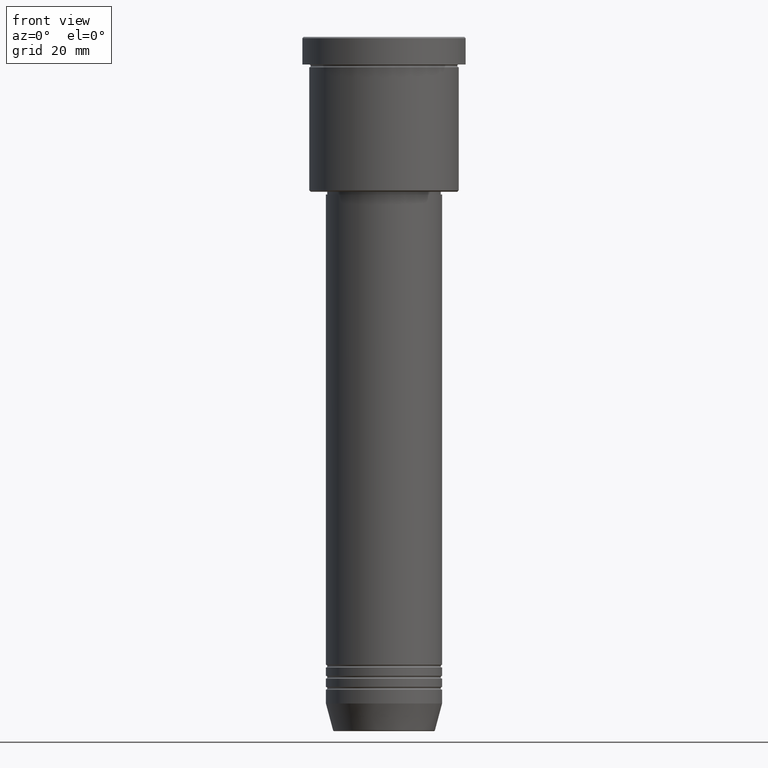
[diagram: clean part render]
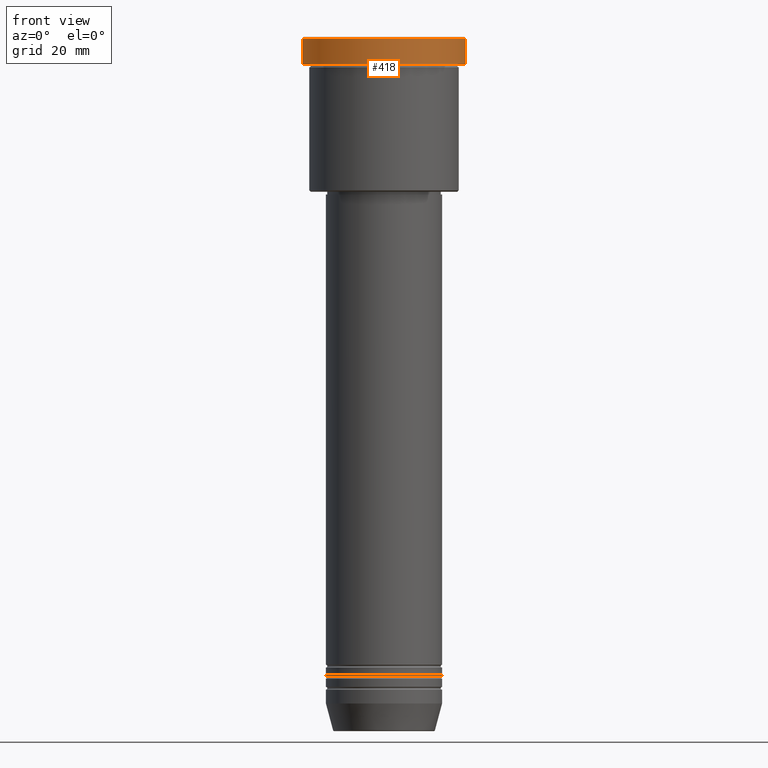
[diagram: same view with one face highlighted and labeled with its STEP entity id]
A machine part, front view. The second image highlights one B-rep face of the part: STEP entity #418.
In plain terms, the highlighted cylindrical surface (partial cylindrical patch) has radius 29.5 mm, axis along (-0, -0, 1).
Its self-contained STEP definition (entity closure, byte-faithful):
#21 = ORIENTED_EDGE ( 'NONE', *, *, #1169, .F. ) ;
#91 = EDGE_CURVE ( 'NONE', #134, #143, #892, .T. ) ;
#92 = CARTESIAN_POINT ( 'NONE',  ( 0.000000000000000000, 0.000000000000000000, 0.000000000000000000 ) ) ;
#96 = DIRECTION ( 'NONE',  ( -0.000000000000000000, -0.000000000000000000, 1.000000000000000000 ) ) ;
#102 = CARTESIAN_POINT ( 'NONE',  ( 0.000000000000000000, 0.000000000000000000, -9.999999999999992895 ) ) ;
#134 = VERTEX_POINT ( 'NONE', #374 ) ;
#143 = VERTEX_POINT ( 'NONE', #748 ) ;
#145 = AXIS2_PLACEMENT_3D ( 'NONE', #92, #96, #999 ) ;
#152 = EDGE_CURVE ( 'NONE', #1033, #752, #1182, .T. ) ;
#180 = DIRECTION ( 'NONE',  ( -0.000000000000000000, -0.000000000000000000, 1.000000000000000000 ) ) ;
#199 = LINE ( 'NONE', #917, #1051 ) ;
#334 = ORIENTED_EDGE ( 'NONE', *, *, #524, .T. ) ;
#374 = CARTESIAN_POINT ( 'NONE',  ( 29.50000000000000000, 0.000000000000000000, -0.5000000000000559552 ) ) ;
#409 = CARTESIAN_POINT ( 'NONE',  ( 29.50000000000000000, 0.000000000000000000, -9.999999999999992895 ) ) ;
#418 = ADVANCED_FACE ( 'NONE', ( #632 ), #1106, .T. ) ;
#493 = CARTESIAN_POINT ( 'NONE',  ( 29.50000000000000000, 0.000000000000000000, 0.000000000000000000 ) ) ;
#524 = EDGE_CURVE ( 'NONE', #752, #134, #1041, .T. ) ;
#536 = AXIS2_PLACEMENT_3D ( 'NONE', #567, #1113, #929 ) ;
#567 = CARTESIAN_POINT ( 'NONE',  ( 0.000000000000000000, 0.000000000000000000, -0.5000000000000559552 ) ) ;
#601 = CARTESIAN_POINT ( 'NONE',  ( -29.50000000000000000, 3.612708057484691604E-15, -9.999999999999992895 ) ) ;
#609 = AXIS2_PLACEMENT_3D ( 'NONE', #102, #180, #838 ) ;
#632 = FACE_OUTER_BOUND ( 'NONE', #918, .T. ) ;
#748 = CARTESIAN_POINT ( 'NONE',  ( -29.50000000000000000, 3.612708057484691604E-15, -0.5000000000000559552 ) ) ;
#752 = VERTEX_POINT ( 'NONE', #409 ) ;
#822 = DIRECTION ( 'NONE',  ( -0.000000000000000000, -0.000000000000000000, 1.000000000000000000 ) ) ;
#838 = DIRECTION ( 'NONE',  ( 1.000000000000000000, 0.000000000000000000, 0.000000000000000000 ) ) ;
#865 = DIRECTION ( 'NONE',  ( -0.000000000000000000, -0.000000000000000000, 1.000000000000000000 ) ) ;
#892 = CIRCLE ( 'NONE', #536, 29.50000000000000000 ) ;
#917 = CARTESIAN_POINT ( 'NONE',  ( -29.50000000000000000, 3.612708057484691604E-15, 0.000000000000000000 ) ) ;
#918 = EDGE_LOOP ( 'NONE', ( #21, #1019, #334, #1150 ) ) ;
#929 = DIRECTION ( 'NONE',  ( 1.000000000000000000, 0.000000000000000000, 0.000000000000000000 ) ) ;
#999 = DIRECTION ( 'NONE',  ( 1.000000000000000000, 0.000000000000000000, 0.000000000000000000 ) ) ;
#1019 = ORIENTED_EDGE ( 'NONE', *, *, #152, .T. ) ;
#1033 = VERTEX_POINT ( 'NONE', #601 ) ;
#1041 = LINE ( 'NONE', #493, #1161 ) ;
#1051 = VECTOR ( 'NONE', #822, 1000.000000000000000 ) ;
#1106 = CYLINDRICAL_SURFACE ( 'NONE', #145, 29.50000000000000000 ) ;
#1113 = DIRECTION ( 'NONE',  ( 0.000000000000000000, 0.000000000000000000, -1.000000000000000000 ) ) ;
#1150 = ORIENTED_EDGE ( 'NONE', *, *, #91, .T. ) ;
#1161 = VECTOR ( 'NONE', #865, 1000.000000000000000 ) ;
#1169 = EDGE_CURVE ( 'NONE', #1033, #143, #199, .T. ) ;
#1182 = CIRCLE ( 'NONE', #609, 29.50000000000000000 ) ;